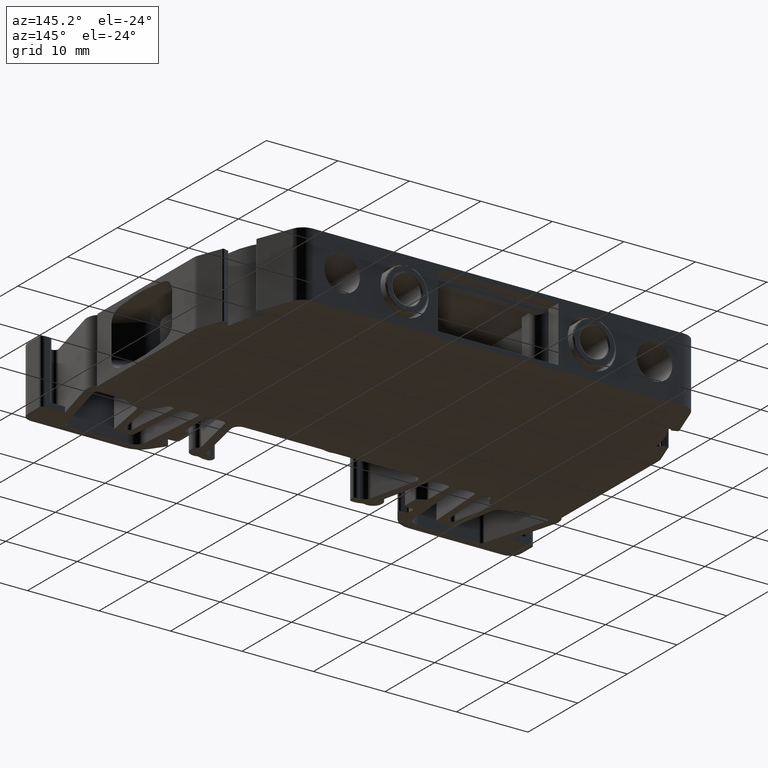
[diagram: clean part render]
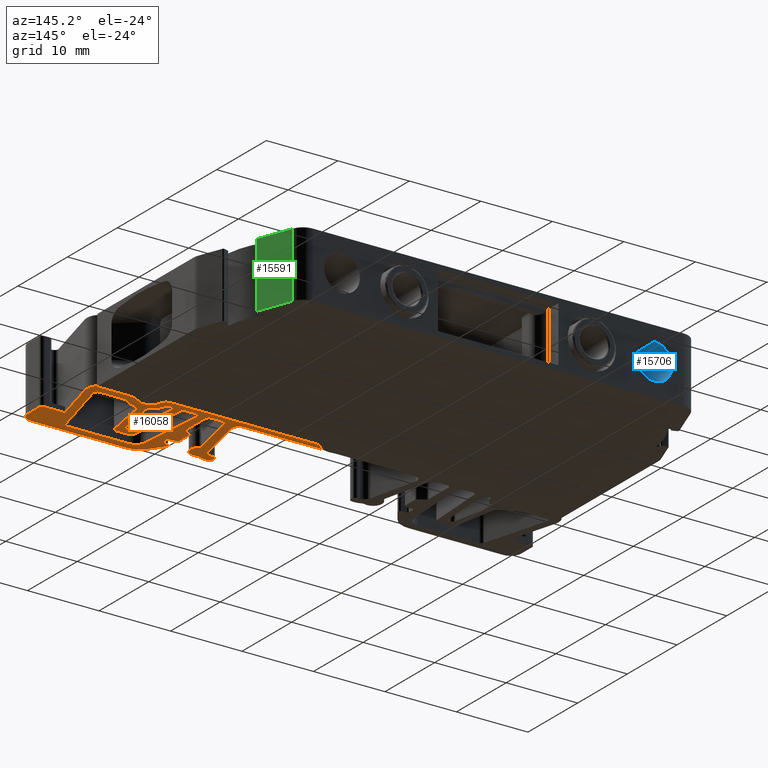
[diagram: same view with three faces highlighted in distinct colors, each labeled with its STEP entity id]
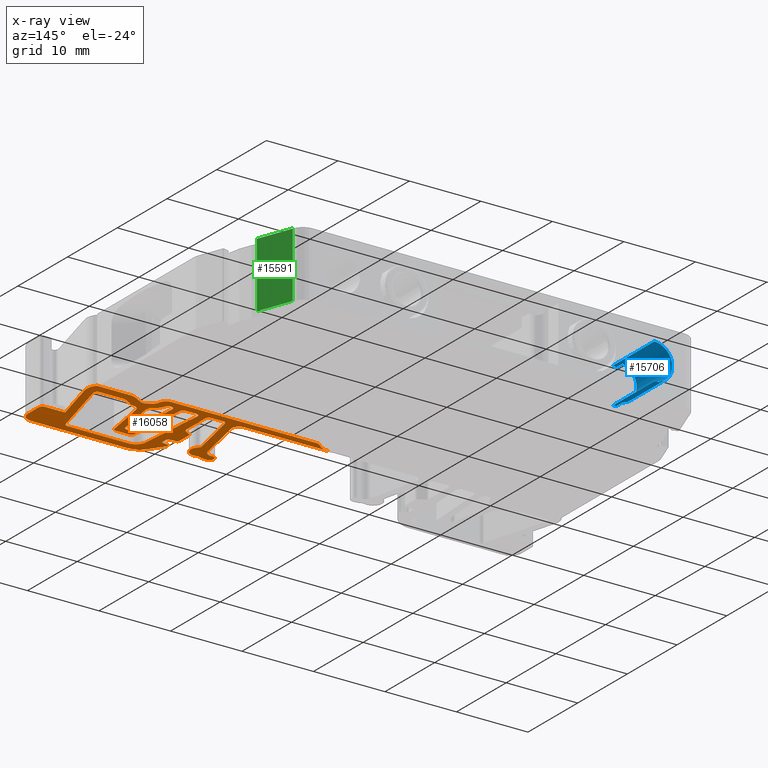
[diagram: x-ray of the same camera — body ghosted, the three highlighted faces saturated]
A machine part, auxiliary view with three faces highlighted in distinct colors.
The next image is the same camera in x-ray (body ghosted, the three faces saturated) — at least one of them is partly hidden behind the body in this view.
Their STEP definitions:

[orange] entity #16058 — the highlighted planar face has unit normal (0, 0, 1).
#31 = CARTESIAN_POINT ( 'NONE',  ( 503.4182846379087000, 101.2396801636683700, 26.95000000000000300 ) ) ;
#33 = CARTESIAN_POINT ( 'NONE',  ( 474.1052032874142100, 110.3413205149823700, 26.95000000000000300 ) ) ;
#46 = CARTESIAN_POINT ( 'NONE',  ( 490.9585304118381800, 99.63552346684321000, 26.95000000000000300 ) ) ;
#47 = CARTESIAN_POINT ( 'NONE',  ( 489.5786051312927600, 98.31895612408730800, 26.95000000000000300 ) ) ;
#61 = CARTESIAN_POINT ( 'NONE',  ( 504.7252043419333600, 109.5396936719772000, 26.95000000000000300 ) ) ;
#63 = CARTESIAN_POINT ( 'NONE',  ( 484.1631970774939800, 109.5396888965324000, 26.95000000000000300 ) ) ;
#66 = CARTESIAN_POINT ( 'NONE',  ( 505.1508689319251700, 107.7062752780199700, 26.95000000000000300 ) ) ;
#69 = CARTESIAN_POINT ( 'NONE',  ( 492.4549093039199800, 98.23968781454580300, 26.95000000000000300 ) ) ;
#71 = CARTESIAN_POINT ( 'NONE',  ( 492.0360595966799900, 97.03968781454578600, 26.95000000000000300 ) ) ;
#94 = CARTESIAN_POINT ( 'NONE',  ( 500.0710872746320200, 109.5396937618599900, 26.95000000000000300 ) ) ;
#97 = CARTESIAN_POINT ( 'NONE',  ( 499.0710843154131500, 109.2717428609203400, 26.95000000000000300 ) ) ;
#98 = CARTESIAN_POINT ( 'NONE',  ( 474.8263984726329500, 110.6485886008790100, 26.95000000000000300 ) ) ;
#104 = CARTESIAN_POINT ( 'NONE',  ( 496.6249713185748600, 108.9825042166677100, 26.95000000000000300 ) ) ;
#113 = CARTESIAN_POINT ( 'NONE',  ( 496.1249713185750400, 109.8485296204524000, 26.95000000000000300 ) ) ;
#117 = CARTESIAN_POINT ( 'NONE',  ( 497.0975427527310400, 108.7096649719465400, 26.95000000000000300 ) ) ;
#132 = CARTESIAN_POINT ( 'NONE',  ( 498.0975427527310400, 108.7096649719465100, 26.95000000000000300 ) ) ;
#140 = CARTESIAN_POINT ( 'NONE',  ( 495.1349905174880100, 110.6485886008790100, 26.95000000000000300 ) ) ;
#141 = CARTESIAN_POINT ( 'NONE',  ( 496.1249713185750400, 109.7897906316026000, 26.95000000000000300 ) ) ;
#271 = DIRECTION ( 'NONE',  ( 1.000000000000000000, 0.0000000000000000000, 0.0000000000000000000 ) ) ;
#291 = CARTESIAN_POINT ( 'NONE',  ( 483.8095130197400000, 99.26814959845513900, 26.95000000000000300 ) ) ;
#298 = DIRECTION ( 'NONE',  ( 1.000000000000000000, 0.0000000000000000000, 0.0000000000000000000 ) ) ;
#299 = DIRECTION ( 'NONE',  ( 0.0000000000000000000, 0.0000000000000000000, 1.000000000000000000 ) ) ;
#303 = CARTESIAN_POINT ( 'NONE',  ( 482.6530999196629600, 101.7281113043836300, 26.95000000000000300 ) ) ;
#310 = DIRECTION ( 'NONE',  ( 0.0000000000000000000, 0.0000000000000000000, 1.000000000000000000 ) ) ;
#396 = DIRECTION ( 'NONE',  ( 1.000000000000000000, 0.0000000000000000000, 0.0000000000000000000 ) ) ;
#399 = DIRECTION ( 'NONE',  ( 1.000000000000000000, 0.0000000000000000000, 0.0000000000000000000 ) ) ;
#402 = DIRECTION ( 'NONE',  ( 0.0000000000000000000, 0.0000000000000000000, 1.000000000000000000 ) ) ;
#403 = DIRECTION ( 'NONE',  ( 1.000000000000000000, 0.0000000000000000000, 0.0000000000000000000 ) ) ;
#404 = DIRECTION ( 'NONE',  ( 0.0000000000000000000, 0.0000000000000000000, 1.000000000000000000 ) ) ;
#406 = DIRECTION ( 'NONE',  ( 0.0000000000000000000, 0.0000000000000000000, 1.000000000000000000 ) ) ;
#412 = DIRECTION ( 'NONE',  ( 0.0000000000000000000, 0.0000000000000000000, 1.000000000000000000 ) ) ;
#416 = CARTESIAN_POINT ( 'NONE',  ( 498.1410102433260400, 106.3207490419024000, 26.95000000000000300 ) ) ;
#420 = CARTESIAN_POINT ( 'NONE',  ( 485.5304463556889800, 102.2323276264070400, 26.95000000000000300 ) ) ;
#422 = CARTESIAN_POINT ( 'NONE',  ( 500.1514723070369500, 107.2396937618600000, 26.95000000000000300 ) ) ;
#430 = DIRECTION ( 'NONE',  ( 1.000000000000000000, 0.0000000000000000000, 0.0000000000000000000 ) ) ;
#434 = CARTESIAN_POINT ( 'NONE',  ( 488.7262501033519600, 109.0396930162353900, 26.95000000000000300 ) ) ;
#436 = CARTESIAN_POINT ( 'NONE',  ( 488.3273060144360300, 102.1499348398699900, 26.95000000000000300 ) ) ;
#439 = CARTESIAN_POINT ( 'NONE',  ( 506.2256083913951000, 100.7396890802093900, 26.95000000000000300 ) ) ;
#440 = DIRECTION ( 'NONE',  ( 1.000000000000000000, 0.0000000000000000000, 0.0000000000000000000 ) ) ;
#461 = DIRECTION ( 'NONE',  ( 0.0000000000000000000, 0.0000000000000000000, 1.000000000000000000 ) ) ;
#463 = DIRECTION ( 'NONE',  ( 1.000000000000000000, 0.0000000000000000000, 0.0000000000000000000 ) ) ;
#474 = DIRECTION ( 'NONE',  ( 0.0000000000000000000, 0.0000000000000000000, 1.000000000000000000 ) ) ;
#481 = CARTESIAN_POINT ( 'NONE',  ( 495.6499654340160000, 100.8314595934410000, 26.95000000000000300 ) ) ;
#487 = DIRECTION ( 'NONE',  ( 0.0000000000000000000, 0.0000000000000000000, 1.000000000000000000 ) ) ;
#489 = DIRECTION ( 'NONE',  ( 0.0000000000000000000, 0.0000000000000000000, 1.000000000000000000 ) ) ;
#492 = DIRECTION ( 'NONE',  ( 1.000000000000000000, 0.0000000000000000000, 0.0000000000000000000 ) ) ;
#494 = DIRECTION ( 'NONE',  ( 1.000000000000000000, 0.0000000000000000000, 0.0000000000000000000 ) ) ;
#504 = CARTESIAN_POINT ( 'NONE',  ( 495.7904542684199800, 107.3870129654522300, 26.95000000000000300 ) ) ;
#508 = CARTESIAN_POINT ( 'NONE',  ( 492.3042562750409800, 109.0396937618599900, 26.95000000000000300 ) ) ;
#509 = DIRECTION ( 'NONE',  ( 0.0000000000000000000, 0.0000000000000000000, 1.000000000000000000 ) ) ;
#511 = CARTESIAN_POINT ( 'NONE',  ( 494.8108650924050900, 101.8314595934410100, 26.95000000000000300 ) ) ;
#514 = DIRECTION ( 'NONE',  ( 0.0000000000000000000, 0.0000000000000000000, 1.000000000000000000 ) ) ;
#517 = DIRECTION ( 'NONE',  ( 1.000000000000000000, 0.0000000000000000000, 0.0000000000000000000 ) ) ;
#518 = DIRECTION ( 'NONE',  ( 1.000000000000000000, 0.0000000000000000000, 0.0000000000000000000 ) ) ;
#519 = DIRECTION ( 'NONE',  ( 0.0000000000000000000, 0.0000000000000000000, 1.000000000000000000 ) ) ;
#529 = DIRECTION ( 'NONE',  ( 0.0000000000000000000, 0.0000000000000000000, 1.000000000000000000 ) ) ;
#530 = DIRECTION ( 'NONE',  ( 1.000000000000000000, 0.0000000000000000000, 0.0000000000000000000 ) ) ;
#533 = CARTESIAN_POINT ( 'NONE',  ( 488.7262535078691600, 105.2263641475503800, 26.95000000000000300 ) ) ;
#535 = CARTESIAN_POINT ( 'NONE',  ( 487.0396113594509900, 109.0396930162353900, 26.95000000000000300 ) ) ;
#541 = DIRECTION ( 'NONE',  ( 0.0000000000000000000, 0.0000000000000000000, 1.000000000000000000 ) ) ;
#543 = CARTESIAN_POINT ( 'NONE',  ( 493.8780557432709800, 100.8314595934410000, 26.95000000000000300 ) ) ;
#551 = DIRECTION ( 'NONE',  ( 1.000000000000000000, 0.0000000000000000000, 0.0000000000000000000 ) ) ;
#556 = CARTESIAN_POINT ( 'NONE',  ( 494.4443399463320400, 109.0396937618599900, 26.95000000000000300 ) ) ;
#557 = DIRECTION ( 'NONE',  ( 1.000000000000000000, 0.0000000000000000000, 0.0000000000000000000 ) ) ;
#558 = DIRECTION ( 'NONE',  ( 0.0000000000000000000, 0.0000000000000000000, 1.000000000000000000 ) ) ;
#563 = DIRECTION ( 'NONE',  ( 1.000000000000000000, 0.0000000000000000000, 0.0000000000000000000 ) ) ;
#638 = DIRECTION ( 'NONE',  ( 1.000000000000000000, 0.0000000000000000000, 0.0000000000000000000 ) ) ;
#651 = CARTESIAN_POINT ( 'NONE',  ( 488.6348606963979900, 100.1897897676794100, 26.95000000000000300 ) ) ;
#652 = DIRECTION ( 'NONE',  ( 0.0000000000000000000, 0.0000000000000000000, 1.000000000000000000 ) ) ;
#673 = DIRECTION ( 'NONE',  ( 0.0000000000000000000, 0.0000000000000000000, 1.000000000000000000 ) ) ;
#675 = CARTESIAN_POINT ( 'NONE',  ( 488.5308055012920400, 103.9547746382026200, 26.95000000000000300 ) ) ;
#679 = DIRECTION ( 'NONE',  ( 1.000000000000000000, 0.0000000000000000000, 0.0000000000000000000 ) ) ;
#764 = DIRECTION ( 'NONE',  ( 1.000000000000000000, 0.0000000000000000000, 0.0000000000000000000 ) ) ;
#773 = CARTESIAN_POINT ( 'NONE',  ( 494.3090960459640000, 109.0396937618599900, 26.95000000000000300 ) ) ;
#774 = CARTESIAN_POINT ( 'NONE',  ( 490.8051071941760000, 109.0396937618599900, 26.95000000000000300 ) ) ;
#778 = CARTESIAN_POINT ( 'NONE',  ( 503.4245529960690500, 107.7396937618600000, 26.95000000000000300 ) ) ;
#787 = DIRECTION ( 'NONE',  ( 0.0000000000000000000, 0.0000000000000000000, 1.000000000000000000 ) ) ;
#791 = DIRECTION ( 'NONE',  ( 0.0000000000000000000, 0.0000000000000000000, 1.000000000000000000 ) ) ;
#794 = DIRECTION ( 'NONE',  ( 1.000000000000000000, 0.0000000000000000000, 0.0000000000000000000 ) ) ;
#795 = DIRECTION ( 'NONE',  ( 1.000000000000000000, 0.0000000000000000000, 0.0000000000000000000 ) ) ;
#800 = DIRECTION ( 'NONE',  ( 0.0000000000000000000, 0.0000000000000000000, 1.000000000000000000 ) ) ;
#897 = CARTESIAN_POINT ( 'NONE',  ( 488.7262501033519600, 109.5396930162353900, 26.95000000000000300 ) ) ;
#911 = CARTESIAN_POINT ( 'NONE',  ( 498.7475485197200000, 107.5838364645661800, 26.95000000000000300 ) ) ;
#912 = CARTESIAN_POINT ( 'NONE',  ( 492.3042562750409800, 109.5396937618599900, 26.95000000000000300 ) ) ;
#937 = CARTESIAN_POINT ( 'NONE',  ( 501.0131887420810100, 98.23968781454581700, 26.95000000000000300 ) ) ;
#938 = CARTESIAN_POINT ( 'NONE',  ( 499.6514708274292500, 108.1057183113908500, 26.95000000000000300 ) ) ;
#1008 = CARTESIAN_POINT ( 'NONE',  ( 490.3063142301489300, 109.0049723126256000, 26.95000000000000300 ) ) ;
#1045 = CARTESIAN_POINT ( 'NONE',  ( 506.7256107749058700, 98.53968781454578600, 26.95000000000000300 ) ) ;
#1062 = CARTESIAN_POINT ( 'NONE',  ( 505.2256107749060400, 97.03968781454584300, 26.95000000000000300 ) ) ;
#1070 = CARTESIAN_POINT ( 'NONE',  ( 485.1394927737402400, 108.3232478803351600, 26.95000000000000300 ) ) ;
#1074 = CARTESIAN_POINT ( 'NONE',  ( 472.2259754564138300, 109.5396899086732200, 26.95000000000000300 ) ) ;
#1099 = CIRCLE ( 'NONE', #1138, 0.5000000000000004400 ) ;
#1107 = AXIS2_PLACEMENT_3D ( 'NONE', #303, #299, #271 ) ;
#1127 = CIRCLE ( 'NONE', #1107, 0.9999965801532617600 ) ;
#1138 = AXIS2_PLACEMENT_3D ( 'NONE', #291, #310, #298 ) ;
#1142 = AXIS2_PLACEMENT_3D ( 'NONE', #439, #461, #440 ) ;
#1145 = CIRCLE ( 'NONE', #1160, 1.000000000000000900 ) ;
#1150 = CIRCLE ( 'NONE', #1168, 0.5000000000000004400 ) ;
#1152 = CIRCLE ( 'NONE', #1175, 0.5000000000000559600 ) ;
#1153 = CIRCLE ( 'NONE', #1265, 0.5000000000000004400 ) ;
#1160 = AXIS2_PLACEMENT_3D ( 'NONE', #422, #402, #430 ) ;
#1163 = CIRCLE ( 'NONE', #1192, 0.2999999999999669600 ) ;
#1165 = CIRCLE ( 'NONE', #1191, 0.4999999999996673800 ) ;
#1168 = AXIS2_PLACEMENT_3D ( 'NONE', #481, #509, #494 ) ;
#1170 = CIRCLE ( 'NONE', #1202, 1.000000000000000900 ) ;
#1171 = CIRCLE ( 'NONE', #1142, 0.5000023835107780800 ) ;
#1175 = AXIS2_PLACEMENT_3D ( 'NONE', #511, #487, #518 ) ;
#1191 = AXIS2_PLACEMENT_3D ( 'NONE', #504, #489, #492 ) ;
#1192 = AXIS2_PLACEMENT_3D ( 'NONE', #436, #474, #463 ) ;
#1195 = CIRCLE ( 'NONE', #1200, 0.5000000000000004400 ) ;
#1197 = AXIS2_PLACEMENT_3D ( 'NONE', #420, #404, #403 ) ;
#1198 = CIRCLE ( 'NONE', #1197, 0.4999999999999449300 ) ;
#1200 = AXIS2_PLACEMENT_3D ( 'NONE', #434, #412, #399 ) ;
#1202 = AXIS2_PLACEMENT_3D ( 'NONE', #416, #406, #396 ) ;
#1211 = CIRCLE ( 'NONE', #1228, 0.5000000000000004400 ) ;
#1217 = CIRCLE ( 'NONE', #1221, 0.4999999999996673800 ) ;
#1218 = CIRCLE ( 'NONE', #1222, 0.2999994530120120300 ) ;
#1220 = AXIS2_PLACEMENT_3D ( 'NONE', #533, #529, #551 ) ;
#1221 = AXIS2_PLACEMENT_3D ( 'NONE', #556, #519, #563 ) ;
#1222 = AXIS2_PLACEMENT_3D ( 'NONE', #651, #652, #638 ) ;
#1228 = AXIS2_PLACEMENT_3D ( 'NONE', #535, #558, #530 ) ;
#1240 = AXIS2_PLACEMENT_3D ( 'NONE', #675, #673, #679 ) ;
#1241 = CIRCLE ( 'NONE', #1220, 0.4999965954834428800 ) ;
#1242 = CIRCLE ( 'NONE', #1243, 0.5000000000000004400 ) ;
#1243 = AXIS2_PLACEMENT_3D ( 'NONE', #543, #541, #557 ) ;
#1254 = CIRCLE ( 'NONE', #1271, 0.5000000000000004400 ) ;
#1264 = CIRCLE ( 'NONE', #1240, 0.5035033921847453800 ) ;
#1265 = AXIS2_PLACEMENT_3D ( 'NONE', #508, #514, #517 ) ;
#1271 = AXIS2_PLACEMENT_3D ( 'NONE', #774, #791, #764 ) ;
#1281 = AXIS2_PLACEMENT_3D ( 'NONE', #778, #787, #795 ) ;
#1293 = CIRCLE ( 'NONE', #1300, 0.5000000000000004400 ) ;
#1300 = AXIS2_PLACEMENT_3D ( 'NONE', #773, #800, #794 ) ;
#1323 = CIRCLE ( 'NONE', #1324, 0.4999999999999449300 ) ;
#1324 = AXIS2_PLACEMENT_3D ( 'NONE', #8960, #8966, #8968 ) ;
#1327 = CIRCLE ( 'NONE', #1281, 0.4999999999999449300 ) ;
#1872 = VECTOR ( 'NONE', #5384, 1000.000000000000100 ) ;
#1888 = AXIS2_PLACEMENT_3D ( 'NONE', #5687, #5657, #5701 ) ;
#1933 = VECTOR ( 'NONE', #12038, 1000.000000000000000 ) ;
#1944 = AXIS2_PLACEMENT_3D ( 'NONE', #11957, #11959, #11964 ) ;
#1949 = CIRCLE ( 'NONE', #1944, 2.250000000000085300 ) ;
#1960 = AXIS2_PLACEMENT_3D ( 'NONE', #11962, #11991, #11951 ) ;
#1966 = CIRCLE ( 'NONE', #1960, 0.2000001754569602500 ) ;
#1980 = CIRCLE ( 'NONE', #1982, 0.5000000000000004400 ) ;
#1982 = AXIS2_PLACEMENT_3D ( 'NONE', #11969, #11971, #11974 ) ;
#1993 = VECTOR ( 'NONE', #12320, 1000.000000000000000 ) ;
#2002 = VECTOR ( 'NONE', #12129, 1000.000000000000100 ) ;
#2003 = VECTOR ( 'NONE', #12297, 1000.000000000000000 ) ;
#2090 = VECTOR ( 'NONE', #12479, 1000.000000000000000 ) ;
#2091 = VECTOR ( 'NONE', #12542, 1000.000000000000000 ) ;
#2099 = CIRCLE ( 'NONE', #2107, 2.299999999999968700 ) ;
#2107 = AXIS2_PLACEMENT_3D ( 'NONE', #12596, #12607, #12597 ) ;
#2142 = VECTOR ( 'NONE', #12619, 1000.000000000000000 ) ;
#2179 = VECTOR ( 'NONE', #10624, 1000.000000000000000 ) ;
#2650 = EDGE_CURVE ( 'NONE', #6312, #6359, #13393, .T. ) ;
#2701 = EDGE_CURVE ( 'NONE', #6362, #6341, #11484, .T. ) ;
#2703 = EDGE_CURVE ( 'NONE', #6314, #6268, #13480, .T. ) ;
#2705 = EDGE_CURVE ( 'NONE', #4088, #4048, #13463, .T. ) ;
#2709 = EDGE_CURVE ( 'NONE', #4080, #4033, #13484, .T. ) ;
#2714 = EDGE_CURVE ( 'NONE', #6354, #6276, #11480, .T. ) ;
#2723 = EDGE_CURVE ( 'NONE', #4032, #4091, #13451, .T. ) ;
#2726 = EDGE_CURVE ( 'NONE', #6253, #4047, #13485, .T. ) ;
#2730 = EDGE_CURVE ( 'NONE', #6276, #4056, #13450, .T. ) ;
#2734 = EDGE_CURVE ( 'NONE', #4060, #4077, #13519, .T. ) ;
#2736 = EDGE_CURVE ( 'NONE', #6268, #6253, #11502, .T. ) ;
#2739 = EDGE_CURVE ( 'NONE', #4144, #4064, #13503, .T. ) ;
#2753 = EDGE_CURVE ( 'NONE', #4046, #4076, #11512, .T. ) ;
#2755 = EDGE_CURVE ( 'NONE', #6252, #6354, #13535, .T. ) ;
#2757 = EDGE_CURVE ( 'NONE', #4069, #4089, #11513, .T. ) ;
#2759 = EDGE_CURVE ( 'NONE', #4058, #4087, #13619, .T. ) ;
#2766 = EDGE_CURVE ( 'NONE', #4049, #4073, #13599, .T. ) ;
#2777 = EDGE_CURVE ( 'NONE', #6341, #6153, #13587, .T. ) ;
#2783 = EDGE_CURVE ( 'NONE', #4493, #6362, #13603, .T. ) ;
#2785 = EDGE_CURVE ( 'NONE', #4344, #4297, #13627, .T. ) ;
#2803 = EDGE_CURVE ( 'NONE', #6348, #6314, #11531, .T. ) ;
#2813 = EDGE_CURVE ( 'NONE', #4040, #6312, #13669, .T. ) ;
#2827 = EDGE_CURVE ( 'NONE', #4061, #4074, #13755, .T. ) ;
#2830 = EDGE_CURVE ( 'NONE', #4151, #6348, #13699, .T. ) ;
#2832 = EDGE_CURVE ( 'NONE', #4092, #4084, #13753, .T. ) ;
#2937 = EDGE_CURVE ( 'NONE', #6359, #6347, #11653, .T. ) ;
#2951 = EDGE_CURVE ( 'NONE', #6400, #6419, #11672, .T. ) ;
#2963 = EDGE_CURVE ( 'NONE', #6317, #6382, #11616, .T. ) ;
#2964 = EDGE_CURVE ( 'NONE', #6317, #6252, #11639, .T. ) ;
#2966 = EDGE_CURVE ( 'NONE', #6426, #6432, #11649, .T. ) ;
#2968 = EDGE_CURVE ( 'NONE', #6408, #6398, #14286, .T. ) ;
#2969 = EDGE_CURVE ( 'NONE', #6398, #6391, #11671, .T. ) ;
#2972 = EDGE_CURVE ( 'NONE', #6400, #6382, #14302, .T. ) ;
#2977 = EDGE_CURVE ( 'NONE', #6391, #6426, #14346, .T. ) ;
#2987 = EDGE_CURVE ( 'NONE', #6408, #6401, #11687, .T. ) ;
#2989 = EDGE_CURVE ( 'NONE', #6419, #6432, #14373, .T. ) ;
#2995 = EDGE_CURVE ( 'NONE', #6347, #6401, #14422, .T. ) ;
#3194 = EDGE_CURVE ( 'NONE', #4144, #4121, #11243, .T. ) ;
#3209 = EDGE_CURVE ( 'NONE', #4120, #4219, #11287, .T. ) ;
#3293 = EDGE_CURVE ( 'NONE', #4189, #4151, #11309, .T. ) ;
#3303 = EDGE_CURVE ( 'NONE', #4134, #4147, #11329, .T. ) ;
#3594 = EDGE_CURVE ( 'NONE', #4224, #4159, #10209, .T. ) ;
#3635 = EDGE_CURVE ( 'NONE', #4235, #4256, #10273, .T. ) ;
#3672 = EDGE_CURVE ( 'NONE', #4235, #4236, #11453, .T. ) ;
#3730 = EDGE_CURVE ( 'NONE', #4315, #4159, #11811, .T. ) ;
#3755 = EDGE_CURVE ( 'NONE', #4317, #4236, #10631, .T. ) ;
#3867 = EDGE_LOOP ( 'NONE', ( #7051, #7081, #7120, #7075, #7089, #7101, #7112, #7087, #7131 ) ) ;
#3916 = EDGE_LOOP ( 'NONE', ( #7134, #7136, #7070, #7127, #7105, #7110, #7122, #7017, #7088, #7096, #7095, #7078, #7132, #7085, #7083, #7118, #7098, #7067, #7128, #7133 ) ) ;
#3933 = EDGE_LOOP ( 'NONE', ( #7044, #7077, #7116, #7091, #7084, #7113, #7104, #7018, #7124, #7103, #7086, #7117, #7093, #7115, #7137, #7135, #7138, #7097, #7114, #7109, #7061, #7079, #7019, #7066, #7121, #7130, #7094, #7082, #7076, #7090, #7099, #7080, #7106, #7092, #7150, #7173, #7107, #7167, #7125, #7202, #7183, #7147, #7200, #7160, #7194, #7163, #7158, #7170, #7151, #7193, #7141 ) ) ;
#4032 = VERTEX_POINT ( 'NONE', #10688 ) ;
#4033 = VERTEX_POINT ( 'NONE', #10677 ) ;
#4040 = VERTEX_POINT ( 'NONE', #10678 ) ;
#4046 = VERTEX_POINT ( 'NONE', #10680 ) ;
#4047 = VERTEX_POINT ( 'NONE', #10685 ) ;
#4048 = VERTEX_POINT ( 'NONE', #10694 ) ;
#4049 = VERTEX_POINT ( 'NONE', #10686 ) ;
#4056 = VERTEX_POINT ( 'NONE', #10741 ) ;
#4058 = VERTEX_POINT ( 'NONE', #10760 ) ;
#4060 = VERTEX_POINT ( 'NONE', #10740 ) ;
#4061 = VERTEX_POINT ( 'NONE', #10777 ) ;
#4064 = VERTEX_POINT ( 'NONE', #10737 ) ;
#4069 = VERTEX_POINT ( 'NONE', #10749 ) ;
#4073 = VERTEX_POINT ( 'NONE', #10735 ) ;
#4074 = VERTEX_POINT ( 'NONE', #10765 ) ;
#4076 = VERTEX_POINT ( 'NONE', #10780 ) ;
#4077 = VERTEX_POINT ( 'NONE', #10786 ) ;
#4080 = VERTEX_POINT ( 'NONE', #10744 ) ;
#4084 = VERTEX_POINT ( 'NONE', #10727 ) ;
#4087 = VERTEX_POINT ( 'NONE', #10725 ) ;
#4088 = VERTEX_POINT ( 'NONE', #10771 ) ;
#4089 = VERTEX_POINT ( 'NONE', #10726 ) ;
#4091 = VERTEX_POINT ( 'NONE', #10739 ) ;
#4092 = VERTEX_POINT ( 'NONE', #10730 ) ;
#4120 = VERTEX_POINT ( 'NONE', #10790 ) ;
#4121 = VERTEX_POINT ( 'NONE', #10834 ) ;
#4134 = VERTEX_POINT ( 'NONE', #10815 ) ;
#4144 = VERTEX_POINT ( 'NONE', #10800 ) ;
#4147 = VERTEX_POINT ( 'NONE', #10804 ) ;
#4151 = VERTEX_POINT ( 'NONE', #10803 ) ;
#4159 = VERTEX_POINT ( 'NONE', #10806 ) ;
#4189 = VERTEX_POINT ( 'NONE', #10853 ) ;
#4219 = VERTEX_POINT ( 'NONE', #10901 ) ;
#4224 = VERTEX_POINT ( 'NONE', #10865 ) ;
#4235 = VERTEX_POINT ( 'NONE', #10886 ) ;
#4236 = VERTEX_POINT ( 'NONE', #10877 ) ;
#4239 = VERTEX_POINT ( 'NONE', #10890 ) ;
#4250 = VERTEX_POINT ( 'NONE', #10970 ) ;
#4256 = VERTEX_POINT ( 'NONE', #10943 ) ;
#4288 = VERTEX_POINT ( 'NONE', #10968 ) ;
#4297 = VERTEX_POINT ( 'NONE', #10961 ) ;
#4315 = VERTEX_POINT ( 'NONE', #11002 ) ;
#4317 = VERTEX_POINT ( 'NONE', #11011 ) ;
#4344 = VERTEX_POINT ( 'NONE', #10992 ) ;
#4347 = VERTEX_POINT ( 'NONE', #10981 ) ;
#4348 = VERTEX_POINT ( 'NONE', #10995 ) ;
#4372 = VERTEX_POINT ( 'NONE', #11071 ) ;
#4396 = VERTEX_POINT ( 'NONE', #11097 ) ;
#4397 = VERTEX_POINT ( 'NONE', #11063 ) ;
#4405 = VERTEX_POINT ( 'NONE', #11087 ) ;
#4423 = VERTEX_POINT ( 'NONE', #11064 ) ;
#4437 = VERTEX_POINT ( 'NONE', #10381 ) ;
#4443 = VERTEX_POINT ( 'NONE', #938 ) ;
#4448 = VERTEX_POINT ( 'NONE', #912 ) ;
#4471 = VERTEX_POINT ( 'NONE', #911 ) ;
#4473 = VERTEX_POINT ( 'NONE', #897 ) ;
#4493 = VERTEX_POINT ( 'NONE', #937 ) ;
#5202 = LINE ( 'NONE', #5208, #1872 ) ;
#5208 = CARTESIAN_POINT ( 'NONE',  ( 463.9149926834334700, 96.13559704101129500, 26.95000000000000300 ) ) ;
#5384 = DIRECTION ( 'NONE',  ( -0.9848074767514608500, -0.1736497444121956100, 0.0000000000000000000 ) ) ;
#5657 = DIRECTION ( 'NONE',  ( 0.0000000000000000000, 0.0000000000000000000, 1.000000000000000000 ) ) ;
#5686 = FACE_BOUND ( 'NONE', #3867, .T. ) ;
#5687 = CARTESIAN_POINT ( 'NONE',  ( 472.2252140059309800, 49.00642838281532200, 26.95000000000000300 ) ) ;
#5693 = PLANE ( 'NONE',  #1888 ) ;
#5699 = FACE_BOUND ( 'NONE', #3916, .T. ) ;
#5700 = FACE_OUTER_BOUND ( 'NONE', #3933, .T. ) ;
#5701 = DIRECTION ( 'NONE',  ( 1.000000000000000000, 0.0000000000000000000, -0.0000000000000000000 ) ) ;
#6153 = VERTEX_POINT ( 'NONE', #1008 ) ;
#6252 = VERTEX_POINT ( 'NONE', #1074 ) ;
#6253 = VERTEX_POINT ( 'NONE', #1045 ) ;
#6268 = VERTEX_POINT ( 'NONE', #1062 ) ;
#6276 = VERTEX_POINT ( 'NONE', #1070 ) ;
#6312 = VERTEX_POINT ( 'NONE', #31 ) ;
#6314 = VERTEX_POINT ( 'NONE', #71 ) ;
#6317 = VERTEX_POINT ( 'NONE', #33 ) ;
#6341 = VERTEX_POINT ( 'NONE', #46 ) ;
#6347 = VERTEX_POINT ( 'NONE', #61 ) ;
#6348 = VERTEX_POINT ( 'NONE', #47 ) ;
#6354 = VERTEX_POINT ( 'NONE', #63 ) ;
#6359 = VERTEX_POINT ( 'NONE', #66 ) ;
#6362 = VERTEX_POINT ( 'NONE', #69 ) ;
#6382 = VERTEX_POINT ( 'NONE', #98 ) ;
#6391 = VERTEX_POINT ( 'NONE', #117 ) ;
#6398 = VERTEX_POINT ( 'NONE', #132 ) ;
#6400 = VERTEX_POINT ( 'NONE', #140 ) ;
#6401 = VERTEX_POINT ( 'NONE', #94 ) ;
#6408 = VERTEX_POINT ( 'NONE', #97 ) ;
#6419 = VERTEX_POINT ( 'NONE', #141 ) ;
#6426 = VERTEX_POINT ( 'NONE', #104 ) ;
#6432 = VERTEX_POINT ( 'NONE', #113 ) ;
#7017 = ORIENTED_EDGE ( 'NONE', *, *, #16302, .T. ) ;
#7018 = ORIENTED_EDGE ( 'NONE', *, *, #2937, .F. ) ;
#7019 = ORIENTED_EDGE ( 'NONE', *, *, #16181, .F. ) ;
#7044 = ORIENTED_EDGE ( 'NONE', *, *, #2989, .T. ) ;
#7051 = ORIENTED_EDGE ( 'NONE', *, *, #16229, .T. ) ;
#7061 = ORIENTED_EDGE ( 'NONE', *, *, #3594, .F. ) ;
#7066 = ORIENTED_EDGE ( 'NONE', *, *, #15347, .F. ) ;
#7067 = ORIENTED_EDGE ( 'NONE', *, *, #3303, .T. ) ;
#7070 = ORIENTED_EDGE ( 'NONE', *, *, #15480, .T. ) ;
#7075 = ORIENTED_EDGE ( 'NONE', *, *, #2734, .F. ) ;
#7076 = ORIENTED_EDGE ( 'NONE', *, *, #2766, .F. ) ;
#7077 = ORIENTED_EDGE ( 'NONE', *, *, #2966, .F. ) ;
#7078 = ORIENTED_EDGE ( 'NONE', *, *, #15356, .F. ) ;
#7079 = ORIENTED_EDGE ( 'NONE', *, *, #16134, .T. ) ;
#7080 = ORIENTED_EDGE ( 'NONE', *, *, #15370, .T. ) ;
#7081 = ORIENTED_EDGE ( 'NONE', *, *, #3209, .T. ) ;
#7082 = ORIENTED_EDGE ( 'NONE', *, *, #15375, .T. ) ;
#7083 = ORIENTED_EDGE ( 'NONE', *, *, #2827, .F. ) ;
#7084 = ORIENTED_EDGE ( 'NONE', *, *, #2968, .F. ) ;
#7085 = ORIENTED_EDGE ( 'NONE', *, *, #15377, .F. ) ;
#7086 = ORIENTED_EDGE ( 'NONE', *, *, #15352, .F. ) ;
#7087 = ORIENTED_EDGE ( 'NONE', *, *, #2753, .F. ) ;
#7088 = ORIENTED_EDGE ( 'NONE', *, *, #16291, .F. ) ;
#7089 = ORIENTED_EDGE ( 'NONE', *, *, #15361, .T. ) ;
#7090 = ORIENTED_EDGE ( 'NONE', *, *, #15339, .T. ) ;
#7091 = ORIENTED_EDGE ( 'NONE', *, *, #2969, .F. ) ;
#7092 = ORIENTED_EDGE ( 'NONE', *, *, #3194, .T. ) ;
#7093 = ORIENTED_EDGE ( 'NONE', *, *, #2736, .F. ) ;
#7094 = ORIENTED_EDGE ( 'NONE', *, *, #16260, .T. ) ;
#7095 = ORIENTED_EDGE ( 'NONE', *, *, #2709, .F. ) ;
#7096 = ORIENTED_EDGE ( 'NONE', *, *, #15334, .T. ) ;
#7097 = ORIENTED_EDGE ( 'NONE', *, *, #15392, .F. ) ;
#7098 = ORIENTED_EDGE ( 'NONE', *, *, #16269, .T. ) ;
#7099 = ORIENTED_EDGE ( 'NONE', *, *, #16234, .T. ) ;
#7101 = ORIENTED_EDGE ( 'NONE', *, *, #2723, .F. ) ;
#7103 = ORIENTED_EDGE ( 'NONE', *, *, #2813, .F. ) ;
#7104 = ORIENTED_EDGE ( 'NONE', *, *, #2995, .F. ) ;
#7105 = ORIENTED_EDGE ( 'NONE', *, *, #15420, .T. ) ;
#7106 = ORIENTED_EDGE ( 'NONE', *, *, #2739, .F. ) ;
#7107 = ORIENTED_EDGE ( 'NONE', *, *, #15299, .T. ) ;
#7109 = ORIENTED_EDGE ( 'NONE', *, *, #3730, .T. ) ;
#7110 = ORIENTED_EDGE ( 'NONE', *, *, #2785, .F. ) ;
#7112 = ORIENTED_EDGE ( 'NONE', *, *, #15364, .T. ) ;
#7113 = ORIENTED_EDGE ( 'NONE', *, *, #2987, .T. ) ;
#7114 = ORIENTED_EDGE ( 'NONE', *, *, #16102, .F. ) ;
#7115 = ORIENTED_EDGE ( 'NONE', *, *, #2703, .F. ) ;
#7116 = ORIENTED_EDGE ( 'NONE', *, *, #2977, .F. ) ;
#7117 = ORIENTED_EDGE ( 'NONE', *, *, #2726, .F. ) ;
#7118 = ORIENTED_EDGE ( 'NONE', *, *, #15367, .T. ) ;
#7120 = ORIENTED_EDGE ( 'NONE', *, *, #15422, .T. ) ;
#7121 = ORIENTED_EDGE ( 'NONE', *, *, #2705, .F. ) ;
#7122 = ORIENTED_EDGE ( 'NONE', *, *, #15335, .T. ) ;
#7124 = ORIENTED_EDGE ( 'NONE', *, *, #2650, .F. ) ;
#7125 = ORIENTED_EDGE ( 'NONE', *, *, #3755, .T. ) ;
#7127 = ORIENTED_EDGE ( 'NONE', *, *, #2759, .F. ) ;
#7128 = ORIENTED_EDGE ( 'NONE', *, *, #15419, .T. ) ;
#7130 = ORIENTED_EDGE ( 'NONE', *, *, #15403, .F. ) ;
#7131 = ORIENTED_EDGE ( 'NONE', *, *, #15372, .T. ) ;
#7132 = ORIENTED_EDGE ( 'NONE', *, *, #2832, .F. ) ;
#7133 = ORIENTED_EDGE ( 'NONE', *, *, #2777, .F. ) ;
#7134 = ORIENTED_EDGE ( 'NONE', *, *, #2701, .F. ) ;
#7135 = ORIENTED_EDGE ( 'NONE', *, *, #2830, .F. ) ;
#7136 = ORIENTED_EDGE ( 'NONE', *, *, #2783, .F. ) ;
#7137 = ORIENTED_EDGE ( 'NONE', *, *, #2803, .F. ) ;
#7138 = ORIENTED_EDGE ( 'NONE', *, *, #3293, .F. ) ;
#7141 = ORIENTED_EDGE ( 'NONE', *, *, #2951, .T. ) ;
#7147 = ORIENTED_EDGE ( 'NONE', *, *, #16131, .F. ) ;
#7150 = ORIENTED_EDGE ( 'NONE', *, *, #15330, .T. ) ;
#7151 = ORIENTED_EDGE ( 'NONE', *, *, #2963, .T. ) ;
#7158 = ORIENTED_EDGE ( 'NONE', *, *, #2755, .F. ) ;
#7160 = ORIENTED_EDGE ( 'NONE', *, *, #15301, .T. ) ;
#7163 = ORIENTED_EDGE ( 'NONE', *, *, #2714, .F. ) ;
#7167 = ORIENTED_EDGE ( 'NONE', *, *, #16142, .F. ) ;
#7170 = ORIENTED_EDGE ( 'NONE', *, *, #2964, .F. ) ;
#7173 = ORIENTED_EDGE ( 'NONE', *, *, #2757, .F. ) ;
#7183 = ORIENTED_EDGE ( 'NONE', *, *, #3635, .T. ) ;
#7193 = ORIENTED_EDGE ( 'NONE', *, *, #2972, .F. ) ;
#7194 = ORIENTED_EDGE ( 'NONE', *, *, #2730, .F. ) ;
#7200 = ORIENTED_EDGE ( 'NONE', *, *, #16153, .T. ) ;
#7202 = ORIENTED_EDGE ( 'NONE', *, *, #3672, .F. ) ;
#8960 = CARTESIAN_POINT ( 'NONE',  ( 501.0131887420810100, 98.73968781454580300, 26.95000000000000300 ) ) ;
#8966 = DIRECTION ( 'NONE',  ( 0.0000000000000000000, 0.0000000000000000000, 1.000000000000000000 ) ) ;
#8968 = DIRECTION ( 'NONE',  ( 1.000000000000000000, 0.0000000000000000000, 0.0000000000000000000 ) ) ;
#10209 = LINE ( 'NONE', #10213, #11445 ) ;
#10213 = CARTESIAN_POINT ( 'NONE',  ( 489.4778518253249900, 49.00642838281532200, 26.95000000000000300 ) ) ;
#10225 = DIRECTION ( 'NONE',  ( 0.0000000000000000000, -1.000000000000000000, 0.0000000000000000000 ) ) ;
#10273 = LINE ( 'NONE', #10327, #11455 ) ;
#10288 = DIRECTION ( 'NONE',  ( -1.081989893893183500E-005, 0.9999999999414649300, 0.0000000000000000000 ) ) ;
#10327 = CARTESIAN_POINT ( 'NONE',  ( 481.8641532665869800, 49.00653267516401000, 26.95000000000000300 ) ) ;
#10381 = CARTESIAN_POINT ( 'NONE',  ( 487.0396113594509900, 109.5396930162353900, 26.95000000000000300 ) ) ;
#10401 = DIRECTION ( 'NONE',  ( 1.000000000000000000, 0.0000000000000000000, 0.0000000000000000000 ) ) ;
#10406 = CARTESIAN_POINT ( 'NONE',  ( 482.3636012586189800, 100.0281160913998100, 26.95000000000000300 ) ) ;
#10441 = DIRECTION ( 'NONE',  ( 0.0000000000000000000, 0.0000000000000000000, 1.000000000000000000 ) ) ;
#10572 = CARTESIAN_POINT ( 'NONE',  ( 489.2778513482790000, 100.8108807999027900, 26.95000000000000300 ) ) ;
#10580 = DIRECTION ( 'NONE',  ( 0.0000000000000000000, 0.0000000000000000000, 1.000000000000000000 ) ) ;
#10602 = DIRECTION ( 'NONE',  ( 1.000000000000000000, 0.0000000000000000000, 0.0000000000000000000 ) ) ;
#10624 = DIRECTION ( 'NONE',  ( -1.000000000000000000, 0.0000000000000000000, 0.0000000000000000000 ) ) ;
#10631 = LINE ( 'NONE', #10655, #2179 ) ;
#10655 = CARTESIAN_POINT ( 'NONE',  ( 472.2252140059309800, 99.52811605105941300, 26.95000000000000300 ) ) ;
#10677 = CARTESIAN_POINT ( 'NONE',  ( 497.1562023455264200, 106.4943963984371600, 26.95000000000000300 ) ) ;
#10678 = CARTESIAN_POINT ( 'NONE',  ( 506.2256046968960300, 101.2396914637065900, 26.95000000000000300 ) ) ;
#10680 = CARTESIAN_POINT ( 'NONE',  ( 494.9230241199466000, 109.1841287366085700, 26.95000000000000300 ) ) ;
#10685 = CARTESIAN_POINT ( 'NONE',  ( 506.7256107749057600, 100.7396890831939800, 26.95000000000000300 ) ) ;
#10686 = CARTESIAN_POINT ( 'NONE',  ( 489.2262501033519600, 109.0396930162353900, 26.95000000000000300 ) ) ;
#10688 = CARTESIAN_POINT ( 'NONE',  ( 496.2828582173201500, 107.3001892871847800, 26.95000000000000300 ) ) ;
#10694 = CARTESIAN_POINT ( 'NONE',  ( 488.0273060144354500, 102.1499348398700000, 26.95000000000000300 ) ) ;
#10725 = CARTESIAN_POINT ( 'NONE',  ( 501.4961541583893400, 98.61028763428892300, 26.95000000000000300 ) ) ;
#10726 = CARTESIAN_POINT ( 'NONE',  ( 485.1970614634530000, 101.8596957522614900, 26.95000000000000300 ) ) ;
#10727 = CARTESIAN_POINT ( 'NONE',  ( 495.6499654340160000, 100.3314595934409500, 26.95000000000000300 ) ) ;
#10730 = CARTESIAN_POINT ( 'NONE',  ( 493.8780557432709800, 100.3314595934409400, 26.95000000000000300 ) ) ;
#10735 = CARTESIAN_POINT ( 'NONE',  ( 489.2262501033519600, 105.2263640158555900, 26.95000000000000300 ) ) ;
#10737 = CARTESIAN_POINT ( 'NONE',  ( 486.5514634276654500, 109.1479131469569700, 26.95000000000000300 ) ) ;
#10739 = CARTESIAN_POINT ( 'NONE',  ( 495.3032690413049900, 101.7446359151736000, 26.95000000000000300 ) ) ;
#10740 = CARTESIAN_POINT ( 'NONE',  ( 494.3120721142801100, 101.7967383467171500, 26.95000000000000300 ) ) ;
#10741 = CARTESIAN_POINT ( 'NONE',  ( 483.6293921585039500, 101.5116704933114100, 26.95000000000000300 ) ) ;
#10744 = CARTESIAN_POINT ( 'NONE',  ( 496.1423693829161200, 100.7446359151733800, 26.95000000000000300 ) ) ;
#10749 = CARTESIAN_POINT ( 'NONE',  ( 483.9678234388579200, 99.74242569019753500, 26.95000000000000300 ) ) ;
#10760 = CARTESIAN_POINT ( 'NONE',  ( 503.9081617976436300, 107.6127192485120600, 26.95000000000000300 ) ) ;
#10765 = CARTESIAN_POINT ( 'NONE',  ( 493.3792627651475300, 100.7967383467170400, 26.95000000000000300 ) ) ;
#10771 = CARTESIAN_POINT ( 'NONE',  ( 488.0273021091069300, 103.9547747990970100, 26.95000000000000300 ) ) ;
#10777 = CARTESIAN_POINT ( 'NONE',  ( 492.8030492531656300, 109.0744150085838800, 26.95000000000000300 ) ) ;
#10780 = CARTESIAN_POINT ( 'NONE',  ( 496.0287608845192200, 107.8265695109875100, 26.95000000000000300 ) ) ;
#10786 = CARTESIAN_POINT ( 'NONE',  ( 493.8103030678393000, 109.0049725151359800, 26.95000000000000300 ) ) ;
#10790 = CARTESIAN_POINT ( 'NONE',  ( 494.3090960459640000, 109.5396937618599900, 26.95000000000000300 ) ) ;
#10800 = CARTESIAN_POINT ( 'NONE',  ( 485.0422983728559000, 102.3405475268694400, 26.95000000000000300 ) ) ;
#10803 = CARTESIAN_POINT ( 'NONE',  ( 488.3891155131031500, 100.0177171763273100, 26.95000000000000300 ) ) ;
#10804 = CARTESIAN_POINT ( 'NONE',  ( 490.3051071941760000, 109.0396937618599900, 26.95000000000000300 ) ) ;
#10806 = CARTESIAN_POINT ( 'NONE',  ( 489.4778518253243600, 100.8108807999027900, 26.95000000000000300 ) ) ;
#10815 = CARTESIAN_POINT ( 'NONE',  ( 490.8051071941760000, 109.5396937618599900, 26.95000000000000300 ) ) ;
#10834 = CARTESIAN_POINT ( 'NONE',  ( 485.0304463556890400, 102.2323276264070400, 26.95000000000000300 ) ) ;
#10853 = CARTESIAN_POINT ( 'NONE',  ( 488.3348612433860000, 100.1897897676794100, 26.95000000000000300 ) ) ;
#10865 = CARTESIAN_POINT ( 'NONE',  ( 489.4778518253249300, 101.5648647967210000, 26.95000000000000300 ) ) ;
#10877 = CARTESIAN_POINT ( 'NONE',  ( 482.3635948213320100, 99.52811605105941300, 26.95000000000000300 ) ) ;
#10886 = CARTESIAN_POINT ( 'NONE',  ( 481.8636012182371900, 100.0281160913998100, 26.95000000000000300 ) ) ;
#10890 = CARTESIAN_POINT ( 'NONE',  ( 488.5827723257859800, 100.4852326106363900, 26.95000000000000300 ) ) ;
#10901 = CARTESIAN_POINT ( 'NONE',  ( 493.8090960459640000, 109.0396937618599900, 26.95000000000000300 ) ) ;
#10943 = CARTESIAN_POINT ( 'NONE',  ( 481.8635990542719600, 100.2281147242303900, 26.95000000000000300 ) ) ;
#10961 = CARTESIAN_POINT ( 'NONE',  ( 503.4245529960690500, 108.2396937618598700, 26.95000000000000300 ) ) ;
#10968 = CARTESIAN_POINT ( 'NONE',  ( 482.3635990542719600, 100.7281147242303900, 26.95000000000000300 ) ) ;
#10970 = CARTESIAN_POINT ( 'NONE',  ( 489.2952866185750100, 101.7641035782094000, 26.95000000000000300 ) ) ;
#10981 = CARTESIAN_POINT ( 'NONE',  ( 488.2790552648029900, 104.3908222094253700, 26.95000000000000300 ) ) ;
#10992 = CARTESIAN_POINT ( 'NONE',  ( 500.1514723070369500, 108.2396937618599700, 26.95000000000000300 ) ) ;
#10995 = CARTESIAN_POINT ( 'NONE',  ( 494.4443399463320400, 109.5396937618596700, 26.95000000000000300 ) ) ;
#11002 = CARTESIAN_POINT ( 'NONE',  ( 489.3125864975770000, 100.6139197371983900, 26.95000000000000300 ) ) ;
#11011 = CARTESIAN_POINT ( 'NONE',  ( 482.6858721504511300, 99.52811605105935700, 26.95000000000000300 ) ) ;
#11063 = CARTESIAN_POINT ( 'NONE',  ( 488.3011597888750000, 101.8510763869380200, 26.95000000000000300 ) ) ;
#11064 = CARTESIAN_POINT ( 'NONE',  ( 488.9762467901848600, 104.7933514984371900, 26.95000000000000300 ) ) ;
#11071 = CARTESIAN_POINT ( 'NONE',  ( 497.9763231249639800, 107.3070949006383800, 26.95000000000000300 ) ) ;
#11087 = CARTESIAN_POINT ( 'NONE',  ( 482.6530999196629600, 100.7281147242303700, 26.95000000000000300 ) ) ;
#11097 = CARTESIAN_POINT ( 'NONE',  ( 483.6052147119350500, 99.72450713529224200, 26.95000000000000300 ) ) ;
#11235 = AXIS2_PLACEMENT_3D ( 'NONE', #14191, #14234, #14195 ) ;
#11236 = AXIS2_PLACEMENT_3D ( 'NONE', #14083, #14145, #14086 ) ;
#11243 = CIRCLE ( 'NONE', #11236, 0.4999999999999449300 ) ;
#11287 = CIRCLE ( 'NONE', #11235, 0.5000000000000004400 ) ;
#11309 = CIRCLE ( 'NONE', #11340, 0.2999994530120120300 ) ;
#11329 = CIRCLE ( 'NONE', #11332, 0.5000000000000004400 ) ;
#11332 = AXIS2_PLACEMENT_3D ( 'NONE', #14463, #14509, #14497 ) ;
#11340 = AXIS2_PLACEMENT_3D ( 'NONE', #14450, #14508, #14441 ) ;
#11445 = VECTOR ( 'NONE', #10225, 1000.000000000000000 ) ;
#11453 = CIRCLE ( 'NONE', #11492, 0.5000000403818094500 ) ;
#11455 = VECTOR ( 'NONE', #10288, 1000.000000000000100 ) ;
#11480 = CIRCLE ( 'NONE', #11542, 1.000000000000000900 ) ;
#11481 = VECTOR ( 'NONE', #13477, 999.9999999999998900 ) ;
#11484 = CIRCLE ( 'NONE', #11490, 1.500000000000001300 ) ;
#11490 = AXIS2_PLACEMENT_3D ( 'NONE', #13479, #13483, #13461 ) ;
#11492 = AXIS2_PLACEMENT_3D ( 'NONE', #10406, #10441, #10401 ) ;
#11493 = VECTOR ( 'NONE', #13462, 1000.000000000000000 ) ;
#11494 = VECTOR ( 'NONE', #13465, 1000.000000000000100 ) ;
#11495 = VECTOR ( 'NONE', #13481, 1000.000000000000000 ) ;
#11498 = VECTOR ( 'NONE', #13659, 1000.000000000000000 ) ;
#11499 = VECTOR ( 'NONE', #13536, 1000.000000000000000 ) ;
#11502 = CIRCLE ( 'NONE', #11507, 1.499999999999945800 ) ;
#11503 = AXIS2_PLACEMENT_3D ( 'NONE', #13550, #13593, #13565 ) ;
#11506 = VECTOR ( 'NONE', #13528, 1000.000000000000100 ) ;
#11507 = AXIS2_PLACEMENT_3D ( 'NONE', #13500, #13506, #13538 ) ;
#11509 = VECTOR ( 'NONE', #13533, 1000.000000000000100 ) ;
#11512 = CIRCLE ( 'NONE', #11515, 2.300000000000024200 ) ;
#11513 = CIRCLE ( 'NONE', #11503, 1.250000258073980000 ) ;
#11515 = AXIS2_PLACEMENT_3D ( 'NONE', #13515, #13539, #13516 ) ;
#11518 = VECTOR ( 'NONE', #13542, 1000.000000000000000 ) ;
#11526 = VECTOR ( 'NONE', #13510, 1000.000000000000000 ) ;
#11530 = VECTOR ( 'NONE', #13589, 1000.000000000000000 ) ;
#11531 = CIRCLE ( 'NONE', #11552, 3.000000000000002700 ) ;
#11534 = VECTOR ( 'NONE', #13623, 1000.000000000000100 ) ;
#11538 = VECTOR ( 'NONE', #13577, 1000.000000000000000 ) ;
#11542 = AXIS2_PLACEMENT_3D ( 'NONE', #13453, #13492, #13482 ) ;
#11543 = VECTOR ( 'NONE', #13499, 1000.000000000000000 ) ;
#11549 = VECTOR ( 'NONE', #13459, 999.9999999999998900 ) ;
#11550 = VECTOR ( 'NONE', #13556, 1000.000000000000100 ) ;
#11552 = AXIS2_PLACEMENT_3D ( 'NONE', #13635, #13706, #13662 ) ;
#11565 = VECTOR ( 'NONE', #13780, 1000.000000000000100 ) ;
#11566 = VECTOR ( 'NONE', #13751, 1000.000000000000000 ) ;
#11568 = VECTOR ( 'NONE', #13778, 1000.000000000000000 ) ;
#11616 = CIRCLE ( 'NONE', #11647, 1.000000000000000900 ) ;
#11617 = AXIS2_PLACEMENT_3D ( 'NONE', #14260, #14304, #14312 ) ;
#11621 = VECTOR ( 'NONE', #14328, 1000.000000000000000 ) ;
#11625 = VECTOR ( 'NONE', #14251, 1000.000000000000200 ) ;
#11628 = AXIS2_PLACEMENT_3D ( 'NONE', #14307, #14299, #14253 ) ;
#11639 = CIRCLE ( 'NONE', #11617, 2.608899704346523400 ) ;
#11642 = AXIS2_PLACEMENT_3D ( 'NONE', #14151, #14085, #14112 ) ;
#11647 = AXIS2_PLACEMENT_3D ( 'NONE', #14273, #14275, #14258 ) ;
#11649 = CIRCLE ( 'NONE', #11656, 1.000000000000000900 ) ;
#11653 = CIRCLE ( 'NONE', #11642, 2.000003529557870000 ) ;
#11656 = AXIS2_PLACEMENT_3D ( 'NONE', #14293, #14297, #14242 ) ;
#11660 = AXIS2_PLACEMENT_3D ( 'NONE', #14237, #14190, #14189 ) ;
#11671 = CIRCLE ( 'NONE', #11628, 1.000000000000000900 ) ;
#11672 = CIRCLE ( 'NONE', #11660, 1.000000000000000900 ) ;
#11687 = CIRCLE ( 'NONE', #11728, 2.000000000000556900 ) ;
#11688 = VECTOR ( 'NONE', #14385, 1000.000000000000100 ) ;
#11712 = VECTOR ( 'NONE', #14471, 1000.000000000000100 ) ;
#11718 = VECTOR ( 'NONE', #14375, 1000.000000000000000 ) ;
#11728 = AXIS2_PLACEMENT_3D ( 'NONE', #14403, #14371, #14418 ) ;
#11811 = CIRCLE ( 'NONE', #11845, 0.2000004770453811500 ) ;
#11845 = AXIS2_PLACEMENT_3D ( 'NONE', #10572, #10580, #10602 ) ;
#11951 = DIRECTION ( 'NONE',  ( 1.000000000000000000, 0.0000000000000000000, 0.0000000000000000000 ) ) ;
#11957 = CARTESIAN_POINT ( 'NONE',  ( 482.6858723268130100, 101.7781160510594400, 26.95000000000000300 ) ) ;
#11959 = DIRECTION ( 'NONE',  ( 0.0000000000000000000, 0.0000000000000000000, 1.000000000000000000 ) ) ;
#11962 = CARTESIAN_POINT ( 'NONE',  ( 489.2778516498679600, 101.5648647967210000, 26.95000000000000300 ) ) ;
#11964 = DIRECTION ( 'NONE',  ( 1.000000000000000000, 0.0000000000000000000, 0.0000000000000000000 ) ) ;
#11969 = CARTESIAN_POINT ( 'NONE',  ( 482.3635990542719600, 100.2281147242303900, 26.95000000000000300 ) ) ;
#11971 = DIRECTION ( 'NONE',  ( 0.0000000000000000000, 0.0000000000000000000, 1.000000000000000000 ) ) ;
#11974 = DIRECTION ( 'NONE',  ( 1.000000000000000000, 0.0000000000000000000, 0.0000000000000000000 ) ) ;
#11991 = DIRECTION ( 'NONE',  ( 0.0000000000000000000, 0.0000000000000000000, 1.000000000000000000 ) ) ;
#12037 = LINE ( 'NONE', #12049, #1933 ) ;
#12038 = DIRECTION ( 'NONE',  ( 1.000000000000000000, 0.0000000000000000000, 0.0000000000000000000 ) ) ;
#12049 = CARTESIAN_POINT ( 'NONE',  ( 472.2252140059309800, 100.7281147242303900, 26.95000000000000300 ) ) ;
#12112 = LINE ( 'NONE', #12127, #2002 ) ;
#12127 = CARTESIAN_POINT ( 'NONE',  ( 476.9354067725940400, 102.8454278455312900, 26.95000000000000300 ) ) ;
#12129 = DIRECTION ( 'NONE',  ( 0.9961948737502504000, -0.08715373493845661500, 0.0000000000000000000 ) ) ;
#12295 = LINE ( 'NONE', #12330, #1993 ) ;
#12297 = DIRECTION ( 'NONE',  ( -1.000000000000000000, 0.0000000000000000000, 0.0000000000000000000 ) ) ;
#12320 = DIRECTION ( 'NONE',  ( -1.000000000000000000, 0.0000000000000000000, 0.0000000000000000000 ) ) ;
#12325 = LINE ( 'NONE', #12340, #2003 ) ;
#12330 = CARTESIAN_POINT ( 'NONE',  ( 472.2252140059309800, 109.5396937618599900, 26.95000000000000300 ) ) ;
#12340 = CARTESIAN_POINT ( 'NONE',  ( 472.2252140059309800, 109.5396930162353900, 26.95000000000000300 ) ) ;
#12478 = LINE ( 'NONE', #12499, #2090 ) ;
#12479 = DIRECTION ( 'NONE',  ( 0.8660224055952225900, 0.5000051929800967100, 0.0000000000000000000 ) ) ;
#12499 = CARTESIAN_POINT ( 'NONE',  ( 452.2564456245315200, 83.59287083026752900, 26.95000000000000300 ) ) ;
#12525 = LINE ( 'NONE', #12557, #2091 ) ;
#12542 = DIRECTION ( 'NONE',  ( -1.000000000000000000, -2.777132971954125100E-014, 0.0000000000000000000 ) ) ;
#12557 = CARTESIAN_POINT ( 'NONE',  ( 472.2252140059293300, 109.5396937618594000, 26.95000000000000300 ) ) ;
#12596 = CARTESIAN_POINT ( 'NONE',  ( 497.5975427527309900, 109.5756903757310000, 26.95000000000000300 ) ) ;
#12597 = DIRECTION ( 'NONE',  ( 1.000000000000000000, 0.0000000000000000000, 0.0000000000000000000 ) ) ;
#12607 = DIRECTION ( 'NONE',  ( 0.0000000000000000000, 0.0000000000000000000, 1.000000000000000000 ) ) ;
#12619 = DIRECTION ( 'NONE',  ( -0.8660245495310747700, -0.5000014796073099000, 0.0000000000000000000 ) ) ;
#12639 = CARTESIAN_POINT ( 'NONE',  ( 453.4910250940284300, 81.45486738744109800, 26.95000000000000300 ) ) ;
#12655 = LINE ( 'NONE', #12639, #2142 ) ;
#13393 = LINE ( 'NONE', #13398, #11494 ) ;
#13398 = CARTESIAN_POINT ( 'NONE',  ( 488.2716139447939600, 44.70714258898565400, 26.95000000000000300 ) ) ;
#13450 = LINE ( 'NONE', #13509, #11506 ) ;
#13451 = LINE ( 'NONE', #13464, #11549 ) ;
#13453 = CARTESIAN_POINT ( 'NONE',  ( 484.1631970774939800, 108.5396888965324000, 26.95000000000000300 ) ) ;
#13459 = DIRECTION ( 'NONE',  ( -0.1736473565349715400, -0.9848078977995742300, 0.0000000000000000000 ) ) ;
#13460 = CARTESIAN_POINT ( 'NONE',  ( 472.2252140059309800, 97.03968781454578600, 26.95000000000000300 ) ) ;
#13461 = DIRECTION ( 'NONE',  ( 1.000000000000000000, -9.251858538542962800E-015, 0.0000000000000000000 ) ) ;
#13462 = DIRECTION ( 'NONE',  ( 1.000000000000000000, 0.0000000000000000000, 0.0000000000000000000 ) ) ;
#13463 = LINE ( 'NONE', #13466, #11495 ) ;
#13464 = CARTESIAN_POINT ( 'NONE',  ( 485.5886637860369900, 46.65010312010370100, 26.95000000000000300 ) ) ;
#13465 = DIRECTION ( 'NONE',  ( 0.2588002801198680000, 0.9659308541556573800, 0.0000000000000000000 ) ) ;
#13466 = CARTESIAN_POINT ( 'NONE',  ( 488.0274210067460100, 49.00646257576920600, 26.95000000000000300 ) ) ;
#13477 = DIRECTION ( 'NONE',  ( 0.1736473565349986300, 0.9848078977995694500, 0.0000000000000000000 ) ) ;
#13479 = CARTESIAN_POINT ( 'NONE',  ( 492.4549093039199800, 99.73968781454580300, 26.95000000000000300 ) ) ;
#13480 = LINE ( 'NONE', #13460, #11493 ) ;
#13481 = DIRECTION ( 'NONE',  ( 2.163808754927300000E-006, -0.9999999999976589800, 0.0000000000000000000 ) ) ;
#13482 = DIRECTION ( 'NONE',  ( 1.000000000000000000, -1.387778780781444400E-014, 0.0000000000000000000 ) ) ;
#13483 = DIRECTION ( 'NONE',  ( -0.0000000000000000000, -0.0000000000000000000, -1.000000000000000000 ) ) ;
#13484 = LINE ( 'NONE', #13494, #11481 ) ;
#13485 = LINE ( 'NONE', #13496, #11499 ) ;
#13492 = DIRECTION ( 'NONE',  ( -0.0000000000000000000, -0.0000000000000000000, -1.000000000000000000 ) ) ;
#13494 = CARTESIAN_POINT ( 'NONE',  ( 486.5734716838349000, 46.47645576356841000, 26.95000000000000300 ) ) ;
#13496 = CARTESIAN_POINT ( 'NONE',  ( 506.7256107749070700, 49.00642838281618900, 26.95000000000000300 ) ) ;
#13499 = DIRECTION ( 'NONE',  ( 1.000000000000000000, 0.0000000000000000000, 0.0000000000000000000 ) ) ;
#13500 = CARTESIAN_POINT ( 'NONE',  ( 505.2256107749060400, 98.53968781454578600, 26.95000000000000300 ) ) ;
#13503 = LINE ( 'NONE', #13517, #11526 ) ;
#13504 = CARTESIAN_POINT ( 'NONE',  ( 472.2252140059309800, 109.5396888965324000, 26.95000000000000300 ) ) ;
#13506 = DIRECTION ( 'NONE',  ( 0.0000000000000000000, 0.0000000000000000000, 1.000000000000000000 ) ) ;
#13509 = CARTESIAN_POINT ( 'NONE',  ( 472.0002384676120100, 49.05630459790131700, 26.95000000000000300 ) ) ;
#13510 = DIRECTION ( 'NONE',  ( 0.2164407663347620300, 0.9762957516390312600, 0.0000000000000000000 ) ) ;
#13515 = CARTESIAN_POINT ( 'NONE',  ( 497.1249713185750400, 109.8485296204524000, 26.95000000000000300 ) ) ;
#13516 = DIRECTION ( 'NONE',  ( 1.000000000000000000, 0.0000000000000000000, 0.0000000000000000000 ) ) ;
#13517 = CARTESIAN_POINT ( 'NONE',  ( 473.1718180619760100, 48.79657014368859800, 26.95000000000000300 ) ) ;
#13519 = LINE ( 'NONE', #13525, #11509 ) ;
#13525 = CARTESIAN_POINT ( 'NONE',  ( 497.8626046772889700, 50.79106089749680600, 26.95000000000000300 ) ) ;
#13528 = DIRECTION ( 'NONE',  ( -0.2164410161971449300, -0.9762956962455315900, 0.0000000000000000000 ) ) ;
#13533 = DIRECTION ( 'NONE',  ( -0.06944249344763738000, 0.9975859562482697300, 0.0000000000000000000 ) ) ;
#13535 = LINE ( 'NONE', #13504, #11543 ) ;
#13536 = DIRECTION ( 'NONE',  ( -2.523232691832355200E-014, 1.000000000000000000, 0.0000000000000000000 ) ) ;
#13538 = DIRECTION ( 'NONE',  ( 1.000000000000000000, 0.0000000000000000000, 0.0000000000000000000 ) ) ;
#13539 = DIRECTION ( 'NONE',  ( 0.0000000000000000000, 0.0000000000000000000, 1.000000000000000000 ) ) ;
#13542 = DIRECTION ( 'NONE',  ( -1.000000000000000000, 3.243125655826225200E-015, 0.0000000000000000000 ) ) ;
#13550 = CARTESIAN_POINT ( 'NONE',  ( 484.3635982420599900, 100.9281166070622100, 26.95000000000000300 ) ) ;
#13556 = DIRECTION ( 'NONE',  ( -0.2588003605136901000, -0.9659308326158679800, 0.0000000000000000000 ) ) ;
#13565 = DIRECTION ( 'NONE',  ( 1.000000000000000000, 0.0000000000000000000, 0.0000000000000000000 ) ) ;
#13567 = CARTESIAN_POINT ( 'NONE',  ( 487.1355222238221400, 45.01153246287659500, 26.95000000000000300 ) ) ;
#13577 = DIRECTION ( 'NONE',  ( 0.0000000000000000000, -1.000000000000000000, 0.0000000000000000000 ) ) ;
#13584 = CARTESIAN_POINT ( 'NONE',  ( 489.2262501033519600, 49.00642838281532200, 26.95000000000000300 ) ) ;
#13587 = LINE ( 'NONE', #13588, #11534 ) ;
#13588 = CARTESIAN_POINT ( 'NONE',  ( 494.3755360778550900, 50.54833321870549400, 26.95000000000000300 ) ) ;
#13589 = DIRECTION ( 'NONE',  ( 1.000000000000000000, -2.967984106845485300E-014, 0.0000000000000000000 ) ) ;
#13593 = DIRECTION ( 'NONE',  ( 0.0000000000000000000, 0.0000000000000000000, 1.000000000000000000 ) ) ;
#13599 = LINE ( 'NONE', #13584, #11538 ) ;
#13603 = LINE ( 'NONE', #13611, #11518 ) ;
#13611 = CARTESIAN_POINT ( 'NONE',  ( 472.2252140059321200, 98.23968781454590300, 26.95000000000000300 ) ) ;
#13614 = CARTESIAN_POINT ( 'NONE',  ( 472.2252140059327400, 108.2396937618607900, 26.95000000000000300 ) ) ;
#13619 = LINE ( 'NONE', #13567, #11550 ) ;
#13623 = DIRECTION ( 'NONE',  ( -0.06944289846840870400, 0.9975859280544739900, 0.0000000000000000000 ) ) ;
#13627 = LINE ( 'NONE', #13614, #11530 ) ;
#13632 = CARTESIAN_POINT ( 'NONE',  ( 472.2250033817699700, 101.2395543802970100, 26.95000000000000300 ) ) ;
#13635 = CARTESIAN_POINT ( 'NONE',  ( 492.0360595966799900, 100.0396878145458300, 26.95000000000000300 ) ) ;
#13659 = DIRECTION ( 'NONE',  ( -0.9999999999918699500, -4.032386670039800200E-006, 0.0000000000000000000 ) ) ;
#13662 = DIRECTION ( 'NONE',  ( 1.000000000000000000, 0.0000000000000000000, 0.0000000000000000000 ) ) ;
#13669 = LINE ( 'NONE', #13632, #11498 ) ;
#13699 = LINE ( 'NONE', #13795, #11566 ) ;
#13706 = DIRECTION ( 'NONE',  ( 0.0000000000000000000, 0.0000000000000000000, 1.000000000000000000 ) ) ;
#13725 = CARTESIAN_POINT ( 'NONE',  ( 496.8650187210429900, 50.72161840405020400, 26.95000000000000300 ) ) ;
#13749 = CARTESIAN_POINT ( 'NONE',  ( 472.2252140059301800, 100.3314595934406000, 26.95000000000000300 ) ) ;
#13751 = DIRECTION ( 'NONE',  ( 0.5735778353762131000, -0.8191510646792432600, 0.0000000000000000000 ) ) ;
#13753 = LINE ( 'NONE', #13749, #11568 ) ;
#13755 = LINE ( 'NONE', #13725, #11565 ) ;
#13778 = DIRECTION ( 'NONE',  ( 1.000000000000000000, 1.566421571065820300E-014, 0.0000000000000000000 ) ) ;
#13780 = DIRECTION ( 'NONE',  ( 0.06944249344767240700, -0.9975859562482672900, 0.0000000000000000000 ) ) ;
#13795 = CARTESIAN_POINT ( 'NONE',  ( 507.0388243985426600, 73.38326942182941100, 26.95000000000000300 ) ) ;
#14083 = CARTESIAN_POINT ( 'NONE',  ( 485.5304463556889800, 102.2323276264070400, 26.95000000000000300 ) ) ;
#14085 = DIRECTION ( 'NONE',  ( 0.0000000000000000000, 0.0000000000000000000, 1.000000000000000000 ) ) ;
#14086 = DIRECTION ( 'NONE',  ( 1.000000000000000000, 0.0000000000000000000, 0.0000000000000000000 ) ) ;
#14112 = DIRECTION ( 'NONE',  ( 1.000000000000000000, 0.0000000000000000000, 0.0000000000000000000 ) ) ;
#14145 = DIRECTION ( 'NONE',  ( 0.0000000000000000000, 0.0000000000000000000, 1.000000000000000000 ) ) ;
#14151 = CARTESIAN_POINT ( 'NONE',  ( 503.2190038143049800, 108.2238767517102100, 26.95000000000000300 ) ) ;
#14189 = DIRECTION ( 'NONE',  ( 1.000000000000000000, 0.0000000000000000000, 0.0000000000000000000 ) ) ;
#14190 = DIRECTION ( 'NONE',  ( -0.0000000000000000000, -0.0000000000000000000, -1.000000000000000000 ) ) ;
#14191 = CARTESIAN_POINT ( 'NONE',  ( 494.3090960459640000, 109.0396937618599900, 26.95000000000000300 ) ) ;
#14195 = DIRECTION ( 'NONE',  ( 1.000000000000000000, 0.0000000000000000000, 0.0000000000000000000 ) ) ;
#14234 = DIRECTION ( 'NONE',  ( 0.0000000000000000000, 0.0000000000000000000, 1.000000000000000000 ) ) ;
#14237 = CARTESIAN_POINT ( 'NONE',  ( 495.1349905174880100, 109.6485886008790100, 26.95000000000000300 ) ) ;
#14242 = DIRECTION ( 'NONE',  ( 1.000000000000000000, -5.551115123125777700E-014, 0.0000000000000000000 ) ) ;
#14251 = DIRECTION ( 'NONE',  ( -0.8660240919394529600, -0.5000022721752830400, 0.0000000000000000000 ) ) ;
#14253 = DIRECTION ( 'NONE',  ( 1.000000000000000000, 4.163336342344333200E-014, 0.0000000000000000000 ) ) ;
#14258 = DIRECTION ( 'NONE',  ( 1.000000000000000000, 0.0000000000000000000, 0.0000000000000000000 ) ) ;
#14260 = CARTESIAN_POINT ( 'NONE',  ( 472.2236773819220200, 112.1485886008790100, 26.95000000000000300 ) ) ;
#14273 = CARTESIAN_POINT ( 'NONE',  ( 474.8263984726329500, 109.6485886008790100, 26.95000000000000300 ) ) ;
#14275 = DIRECTION ( 'NONE',  ( -0.0000000000000000000, -0.0000000000000000000, -1.000000000000000000 ) ) ;
#14280 = CARTESIAN_POINT ( 'NONE',  ( 499.0710843154129700, 109.2717428609206000, 26.95000000000000300 ) ) ;
#14286 = LINE ( 'NONE', #14280, #11625 ) ;
#14293 = CARTESIAN_POINT ( 'NONE',  ( 497.1249713185750400, 109.8485296204524000, 26.95000000000000300 ) ) ;
#14297 = DIRECTION ( 'NONE',  ( -0.0000000000000000000, -0.0000000000000000000, -1.000000000000000000 ) ) ;
#14299 = DIRECTION ( 'NONE',  ( -0.0000000000000000000, -0.0000000000000000000, -1.000000000000000000 ) ) ;
#14302 = LINE ( 'NONE', #14308, #11621 ) ;
#14304 = DIRECTION ( 'NONE',  ( -0.0000000000000000000, -0.0000000000000000000, -1.000000000000000000 ) ) ;
#14307 = CARTESIAN_POINT ( 'NONE',  ( 497.5975427527309900, 109.5756903757310000, 26.95000000000000300 ) ) ;
#14308 = CARTESIAN_POINT ( 'NONE',  ( 495.6249713185750400, 110.6485886008790100, 26.95000000000000300 ) ) ;
#14312 = DIRECTION ( 'NONE',  ( 1.000000000000000000, 1.063880515199074100E-014, 0.0000000000000000000 ) ) ;
#14328 = DIRECTION ( 'NONE',  ( -1.000000000000000000, 0.0000000000000000000, 0.0000000000000000000 ) ) ;
#14346 = LINE ( 'NONE', #14415, #11688 ) ;
#14371 = DIRECTION ( 'NONE',  ( -0.0000000000000000000, -0.0000000000000000000, -1.000000000000000000 ) ) ;
#14373 = LINE ( 'NONE', #14408, #11718 ) ;
#14375 = DIRECTION ( 'NONE',  ( 0.0000000000000000000, 1.000000000000000000, 0.0000000000000000000 ) ) ;
#14385 = DIRECTION ( 'NONE',  ( -0.8660254037844871100, 0.4999999999999158500, 0.0000000000000000000 ) ) ;
#14403 = CARTESIAN_POINT ( 'NONE',  ( 500.0710872746320200, 107.5396937618599900, 26.95000000000000300 ) ) ;
#14408 = CARTESIAN_POINT ( 'NONE',  ( 496.1249713185750400, 109.7897906316026000, 26.95000000000000300 ) ) ;
#14415 = CARTESIAN_POINT ( 'NONE',  ( 497.0975427527309900, 108.7096649719464000, 26.95000000000000300 ) ) ;
#14418 = DIRECTION ( 'NONE',  ( 1.000000000000000000, -6.938893903905296500E-015, 0.0000000000000000000 ) ) ;
#14422 = LINE ( 'NONE', #14475, #11712 ) ;
#14441 = DIRECTION ( 'NONE',  ( 1.000000000000000000, 0.0000000000000000000, 0.0000000000000000000 ) ) ;
#14450 = CARTESIAN_POINT ( 'NONE',  ( 488.6348606963979900, 100.1897897676794100, 26.95000000000000300 ) ) ;
#14463 = CARTESIAN_POINT ( 'NONE',  ( 490.8051071941760000, 109.0396937618599900, 26.95000000000000300 ) ) ;
#14471 = DIRECTION ( 'NONE',  ( -0.9999999999999996700, 2.574979927898909900E-008, 0.0000000000000000000 ) ) ;
#14475 = CARTESIAN_POINT ( 'NONE',  ( 500.0710872746320200, 109.5396937618599900, 26.95000000000000300 ) ) ;
#14497 = DIRECTION ( 'NONE',  ( 1.000000000000000000, 0.0000000000000000000, 0.0000000000000000000 ) ) ;
#14508 = DIRECTION ( 'NONE',  ( 0.0000000000000000000, 0.0000000000000000000, 1.000000000000000000 ) ) ;
#14509 = DIRECTION ( 'NONE',  ( 0.0000000000000000000, 0.0000000000000000000, 1.000000000000000000 ) ) ;
#15299 = EDGE_CURVE ( 'NONE', #4069, #4396, #1099, .T. ) ;
#15301 = EDGE_CURVE ( 'NONE', #4405, #4056, #1127, .T. ) ;
#15330 = EDGE_CURVE ( 'NONE', #4121, #4089, #1198, .T. ) ;
#15334 = EDGE_CURVE ( 'NONE', #4372, #4033, #1170, .T. ) ;
#15335 = EDGE_CURVE ( 'NONE', #4344, #4443, #1145, .T. ) ;
#15339 = EDGE_CURVE ( 'NONE', #4049, #4473, #1195, .T. ) ;
#15347 = EDGE_CURVE ( 'NONE', #4048, #4397, #1163, .T. ) ;
#15352 = EDGE_CURVE ( 'NONE', #4047, #4040, #1171, .T. ) ;
#15356 = EDGE_CURVE ( 'NONE', #4084, #4080, #1150, .T. ) ;
#15361 = EDGE_CURVE ( 'NONE', #4060, #4091, #1152, .T. ) ;
#15364 = EDGE_CURVE ( 'NONE', #4032, #4076, #1165, .T. ) ;
#15367 = EDGE_CURVE ( 'NONE', #4061, #4448, #1153, .T. ) ;
#15370 = EDGE_CURVE ( 'NONE', #4437, #4064, #1211, .T. ) ;
#15372 = EDGE_CURVE ( 'NONE', #4046, #4348, #1217, .T. ) ;
#15375 = EDGE_CURVE ( 'NONE', #4423, #4073, #1241, .T. ) ;
#15377 = EDGE_CURVE ( 'NONE', #4074, #4092, #1242, .T. ) ;
#15392 = EDGE_CURVE ( 'NONE', #4239, #4189, #1218, .T. ) ;
#15403 = EDGE_CURVE ( 'NONE', #4347, #4088, #1264, .T. ) ;
#15419 = EDGE_CURVE ( 'NONE', #4147, #6153, #1254, .T. ) ;
#15420 = EDGE_CURVE ( 'NONE', #4058, #4297, #1327, .T. ) ;
#15422 = EDGE_CURVE ( 'NONE', #4219, #4077, #1293, .T. ) ;
#15480 = EDGE_CURVE ( 'NONE', #4493, #4087, #1323, .T. ) ;
#16058 = ADVANCED_FACE ( 'NONE', ( #5699, #5686, #5700 ), #5693, .F. ) ;
#16102 = EDGE_CURVE ( 'NONE', #4315, #4239, #5202, .T. ) ;
#16131 = EDGE_CURVE ( 'NONE', #4288, #4256, #1980, .T. ) ;
#16134 = EDGE_CURVE ( 'NONE', #4224, #4250, #1966, .T. ) ;
#16142 = EDGE_CURVE ( 'NONE', #4317, #4396, #1949, .T. ) ;
#16153 = EDGE_CURVE ( 'NONE', #4288, #4405, #12037, .T. ) ;
#16181 = EDGE_CURVE ( 'NONE', #4397, #4250, #12112, .T. ) ;
#16229 = EDGE_CURVE ( 'NONE', #4348, #4120, #12295, .T. ) ;
#16234 = EDGE_CURVE ( 'NONE', #4473, #4437, #12325, .T. ) ;
#16260 = EDGE_CURVE ( 'NONE', #4347, #4423, #12478, .T. ) ;
#16269 = EDGE_CURVE ( 'NONE', #4448, #4134, #12525, .T. ) ;
#16291 = EDGE_CURVE ( 'NONE', #4372, #4471, #2099, .T. ) ;
#16302 = EDGE_CURVE ( 'NONE', #4443, #4471, #12655, .T. ) ;

[blue] entity #15706 — the highlighted cylindrical surface (edge-blend (fillet) strip) has radius 2.5 mm, axis along (0, -1, 0).
#1533 = AXIS2_PLACEMENT_3D ( 'NONE', #2311, #2307, #2323 ) ;
#2285 = CYLINDRICAL_SURFACE ( 'NONE', #1533, 2.499997494901096100 ) ;
#2289 = FACE_OUTER_BOUND ( 'NONE', #6089, .T. ) ;
#2307 = DIRECTION ( 'NONE',  ( 0.0000000000000000000, -1.000000000000000000, 0.0000000000000000000 ) ) ;
#2311 = CARTESIAN_POINT ( 'NONE',  ( 450.3752392351159400, 131.6839649025544100, 31.39999999999999900 ) ) ;
#2323 = DIRECTION ( 'NONE',  ( 0.0000000000000000000, 0.0000000000000000000, -1.000000000000000000 ) ) ;
#3192 = EDGE_CURVE ( 'NONE', #4063, #4111, #14131, .T. ) ;
#3200 = EDGE_CURVE ( 'NONE', #4142, #4105, #11282, .T. ) ;
#3214 = EDGE_CURVE ( 'NONE', #4148, #4111, #12997, .T. ) ;
#3223 = EDGE_CURVE ( 'NONE', #4037, #4130, #14209, .T. ) ;
#3247 = EDGE_CURVE ( 'NONE', #4037, #4063, #11331, .T. ) ;
#3266 = EDGE_CURVE ( 'NONE', #4130, #4137, #12999, .T. ) ;
#3280 = EDGE_CURVE ( 'NONE', #4142, #4148, #14367, .T. ) ;
#3302 = EDGE_CURVE ( 'NONE', #4137, #4105, #14460, .T. ) ;
#4037 = VERTEX_POINT ( 'NONE', #10699 ) ;
#4063 = VERTEX_POINT ( 'NONE', #10775 ) ;
#4105 = VERTEX_POINT ( 'NONE', #10759 ) ;
#4111 = VERTEX_POINT ( 'NONE', #10773 ) ;
#4130 = VERTEX_POINT ( 'NONE', #10845 ) ;
#4137 = VERTEX_POINT ( 'NONE', #10847 ) ;
#4142 = VERTEX_POINT ( 'NONE', #10822 ) ;
#4148 = VERTEX_POINT ( 'NONE', #10797 ) ;
#4479 = ORIENTED_EDGE ( 'NONE', *, *, #3266, .T. ) ;
#4485 = ORIENTED_EDGE ( 'NONE', *, *, #3302, .T. ) ;
#4486 = ORIENTED_EDGE ( 'NONE', *, *, #3223, .T. ) ;
#4513 = ORIENTED_EDGE ( 'NONE', *, *, #3247, .F. ) ;
#4514 = ORIENTED_EDGE ( 'NONE', *, *, #3200, .F. ) ;
#4515 = ORIENTED_EDGE ( 'NONE', *, *, #3214, .T. ) ;
#4532 = ORIENTED_EDGE ( 'NONE', *, *, #3280, .T. ) ;
#4537 = ORIENTED_EDGE ( 'NONE', *, *, #3192, .F. ) ;
#6089 = EDGE_LOOP ( 'NONE', ( #4513, #4486, #4479, #4485, #4514, #4532, #4515, #4537 ) ) ;
#10699 = CARTESIAN_POINT ( 'NONE',  ( 450.3752392351159400, 143.5396878145460000, 33.89999749490109300 ) ) ;
#10759 = CARTESIAN_POINT ( 'NONE',  ( 449.8752392878540100, 136.3878730676889900, 33.84948719679237400 ) ) ;
#10773 = CARTESIAN_POINT ( 'NONE',  ( 450.3752392351160000, 135.1878730676889700, 28.90000250509889700 ) ) ;
#10775 = CARTESIAN_POINT ( 'NONE',  ( 450.3752392351159400, 143.5396878145460000, 28.90000250509890000 ) ) ;
#10797 = CARTESIAN_POINT ( 'NONE',  ( 449.8752392878540100, 135.1878730676889700, 28.95051280320760900 ) ) ;
#10822 = CARTESIAN_POINT ( 'NONE',  ( 449.8752392878540100, 136.3878730676889900, 28.95051280320761200 ) ) ;
#10845 = CARTESIAN_POINT ( 'NONE',  ( 450.3752392351160000, 135.1878730676889700, 33.89999749490109300 ) ) ;
#10847 = CARTESIAN_POINT ( 'NONE',  ( 449.8752392878540100, 135.1878730676889700, 33.84948719679237400 ) ) ;
#11249 = AXIS2_PLACEMENT_3D ( 'NONE', #14125, #14127, #14143 ) ;
#11256 = VECTOR ( 'NONE', #14218, 1000.000000000000000 ) ;
#11263 = VECTOR ( 'NONE', #14107, 1000.000000000000000 ) ;
#11282 = CIRCLE ( 'NONE', #11249, 2.499997494901096100 ) ;
#11320 = AXIS2_PLACEMENT_3D ( 'NONE', #14252, #14306, #14332 ) ;
#11331 = CIRCLE ( 'NONE', #11320, 2.499997494901096100 ) ;
#11336 = VECTOR ( 'NONE', #14402, 1000.000000000000000 ) ;
#11350 = VECTOR ( 'NONE', #14447, 1000.000000000000000 ) ;
#12997 = B_SPLINE_CURVE_WITH_KNOTS ( 'NONE', 3,
 ( #14215, #14179, #14168, #14243 ),
 .UNSPECIFIED., .F., .F.,
 ( 4, 4 ),
 ( 0.0000000000000000000, 1.000000000000000000 ),
 .UNSPECIFIED. ) ;
#12999 = B_SPLINE_CURVE_WITH_KNOTS ( 'NONE', 3,
 ( #14429, #14421, #14376, #14380 ),
 .UNSPECIFIED., .F., .F.,
 ( 4, 4 ),
 ( 0.0000000000000000000, 1.000000000000000000 ),
 .UNSPECIFIED. ) ;
#14107 = DIRECTION ( 'NONE',  ( 0.0000000000000000000, -1.000000000000000000, 0.0000000000000000000 ) ) ;
#14120 = CARTESIAN_POINT ( 'NONE',  ( 450.3752392351159400, 131.6839649025544100, 28.90000250509890000 ) ) ;
#14125 = CARTESIAN_POINT ( 'NONE',  ( 450.3752392351159400, 136.3878730676889900, 31.39999999999999900 ) ) ;
#14127 = DIRECTION ( 'NONE',  ( -0.0000000000000000000, 1.000000000000000000, -0.0000000000000000000 ) ) ;
#14131 = LINE ( 'NONE', #14120, #11263 ) ;
#14143 = DIRECTION ( 'NONE',  ( 0.0000000000000000000, 0.0000000000000000000, -1.000000000000000000 ) ) ;
#14168 = CARTESIAN_POINT ( 'NONE',  ( 450.2074409834226600, 135.1878730676889700, 28.90000250509890000 ) ) ;
#14179 = CARTESIAN_POINT ( 'NONE',  ( 450.0396473202641200, 135.1878730676889700, 28.91695312278056600 ) ) ;
#14209 = LINE ( 'NONE', #14213, #11256 ) ;
#14213 = CARTESIAN_POINT ( 'NONE',  ( 450.3752392351159400, 131.6839649025544100, 33.89999749490109300 ) ) ;
#14215 = CARTESIAN_POINT ( 'NONE',  ( 449.8752392878540100, 135.1878730676889700, 28.95051280320760900 ) ) ;
#14218 = DIRECTION ( 'NONE',  ( 0.0000000000000000000, -1.000000000000000000, 0.0000000000000000000 ) ) ;
#14243 = CARTESIAN_POINT ( 'NONE',  ( 450.3752392351160000, 135.1878730676889700, 28.90000250509889700 ) ) ;
#14252 = CARTESIAN_POINT ( 'NONE',  ( 450.3752392351159400, 143.5396878145460000, 31.39999999999999900 ) ) ;
#14306 = DIRECTION ( 'NONE',  ( 0.0000000000000000000, -1.000000000000000000, 0.0000000000000000000 ) ) ;
#14332 = DIRECTION ( 'NONE',  ( 0.0000000000000000000, 0.0000000000000000000, -1.000000000000000000 ) ) ;
#14349 = CARTESIAN_POINT ( 'NONE',  ( 449.8752392878540100, 136.3878730676889900, 28.95051280320760900 ) ) ;
#14367 = LINE ( 'NONE', #14349, #11336 ) ;
#14376 = CARTESIAN_POINT ( 'NONE',  ( 450.0396473202641200, 135.1878730676889700, 33.88304687721943500 ) ) ;
#14380 = CARTESIAN_POINT ( 'NONE',  ( 449.8752392878540100, 135.1878730676889700, 33.84948719679237400 ) ) ;
#14402 = DIRECTION ( 'NONE',  ( -0.0000000000000000000, -1.000000000000000000, 0.0000000000000000000 ) ) ;
#14421 = CARTESIAN_POINT ( 'NONE',  ( 450.2074409834227100, 135.1878730676889700, 33.89999749490110000 ) ) ;
#14429 = CARTESIAN_POINT ( 'NONE',  ( 450.3752392351160000, 135.1878730676889700, 33.89999749490109300 ) ) ;
#14447 = DIRECTION ( 'NONE',  ( 0.0000000000000000000, 1.000000000000000000, -0.0000000000000000000 ) ) ;
#14460 = LINE ( 'NONE', #14474, #11350 ) ;
#14474 = CARTESIAN_POINT ( 'NONE',  ( 449.8752392878540100, 136.3878730676889900, 33.84948719679236700 ) ) ;
#15706 = ADVANCED_FACE ( 'NONE', ( #2289 ), #2285, .F. ) ;

[green] entity #15591 — the highlighted planar face has unit normal (0.9397, 0.342, -0).
#80 = CARTESIAN_POINT ( 'NONE',  ( 500.0465707159510200, 142.2237417628949700, 26.84999999999999800 ) ) ;
#148 = CARTESIAN_POINT ( 'NONE',  ( 501.7614939674509700, 137.5121354201390000, 26.84999999999999800 ) ) ;
#165 = CARTESIAN_POINT ( 'NONE',  ( 500.0465707159510200, 142.2237417628949700, 35.94999999999999600 ) ) ;
#190 = CARTESIAN_POINT ( 'NONE',  ( 501.7614939674509700, 137.5121354201390000, 35.94999999999999600 ) ) ;
#1431 = AXIS2_PLACEMENT_3D ( 'NONE', #9480, #9448, #9478 ) ;
#3034 = EDGE_CURVE ( 'NONE', #6488, #6481, #14666, .T. ) ;
#3051 = EDGE_CURVE ( 'NONE', #6487, #6488, #15259, .T. ) ;
#3126 = EDGE_CURVE ( 'NONE', #6487, #6448, #13867, .T. ) ;
#3146 = EDGE_CURVE ( 'NONE', #6481, #6448, #13980, .T. ) ;
#3931 = EDGE_LOOP ( 'NONE', ( #7470, #7466, #7477, #7514 ) ) ;
#6448 = VERTEX_POINT ( 'NONE', #80 ) ;
#6481 = VERTEX_POINT ( 'NONE', #148 ) ;
#6487 = VERTEX_POINT ( 'NONE', #165 ) ;
#6488 = VERTEX_POINT ( 'NONE', #190 ) ;
#7466 = ORIENTED_EDGE ( 'NONE', *, *, #3126, .F. ) ;
#7470 = ORIENTED_EDGE ( 'NONE', *, *, #3146, .T. ) ;
#7477 = ORIENTED_EDGE ( 'NONE', *, *, #3051, .T. ) ;
#7514 = ORIENTED_EDGE ( 'NONE', *, *, #3034, .T. ) ;
#9398 = FACE_OUTER_BOUND ( 'NONE', #3931, .T. ) ;
#9448 = DIRECTION ( 'NONE',  ( 0.9396901345321160300, 0.3420269741745725100, -0.0000000000000000000 ) ) ;
#9459 = PLANE ( 'NONE',  #1431 ) ;
#9478 = DIRECTION ( 'NONE',  ( -0.3420269741745725100, 0.9396901345321160300, 0.0000000000000000000 ) ) ;
#9480 = CARTESIAN_POINT ( 'NONE',  ( 501.7614939674509700, 137.5121354201390000, -46.85973354774110100 ) ) ;
#11230 = VECTOR ( 'NONE', #13986, 1000.000000000000000 ) ;
#11284 = VECTOR ( 'NONE', #14013, 1000.000000000000000 ) ;
#11743 = VECTOR ( 'NONE', #13514, 1000.000000000000000 ) ;
#11760 = VECTOR ( 'NONE', #13616, 1000.000000000000000 ) ;
#13514 = DIRECTION ( 'NONE',  ( -0.0000000000000000000, -0.0000000000000000000, -1.000000000000000000 ) ) ;
#13616 = DIRECTION ( 'NONE',  ( 0.3420269741745725100, -0.9396901345321160300, 0.0000000000000000000 ) ) ;
#13867 = LINE ( 'NONE', #13888, #11230 ) ;
#13888 = CARTESIAN_POINT ( 'NONE',  ( 500.0465707159510200, 142.2237417628949700, -46.85973354774110100 ) ) ;
#13920 = CARTESIAN_POINT ( 'NONE',  ( 500.0465707159507400, 142.2237417628949500, 26.84999999999999800 ) ) ;
#13980 = LINE ( 'NONE', #13920, #11284 ) ;
#13986 = DIRECTION ( 'NONE',  ( -0.0000000000000000000, -0.0000000000000000000, -1.000000000000000000 ) ) ;
#14013 = DIRECTION ( 'NONE',  ( -0.3420269741745725100, 0.9396901345321160300, 0.0000000000000000000 ) ) ;
#14666 = LINE ( 'NONE', #14672, #11743 ) ;
#14672 = CARTESIAN_POINT ( 'NONE',  ( 501.7614939674509700, 137.5121354201390000, -46.85973354774110100 ) ) ;
#15226 = CARTESIAN_POINT ( 'NONE',  ( 501.7614939674509700, 137.5121354201390000, 35.94999999999999600 ) ) ;
#15259 = LINE ( 'NONE', #15226, #11760 ) ;
#15591 = ADVANCED_FACE ( 'NONE', ( #9398 ), #9459, .T. ) ;